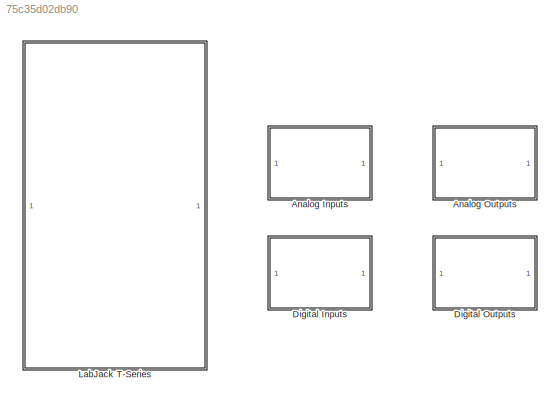
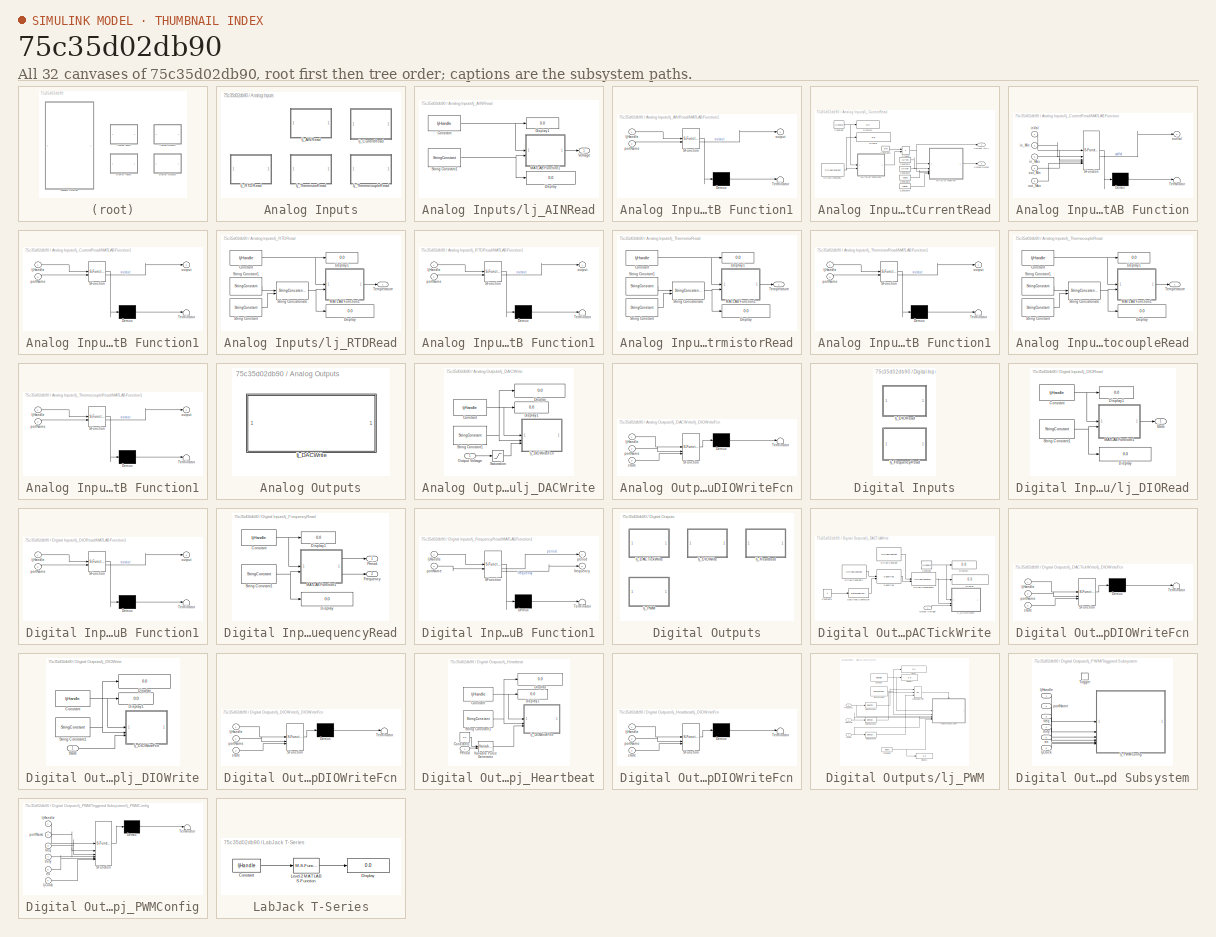
[diagram: thumbnail index - all 32 canvases of the model, root first then tree order]
MODEL slx_75c35d02db90
KIND library
CONFIG AbsTol = auto
CONFIG EnableMultiTasking = off
CONFIG FixedStep = auto
CONFIG MaxStep = auto
CONFIG MinStep = auto
CONFIG RelTol = 1e-3
CONFIG SampleTimeConstraint = Unconstrained
CONFIG SolverName = VariableStepAuto
CONFIG StartTime = 0.0
CONFIG StopTime = 10.0
BLOCK [SubSystem] Analog Inputs
BLOCK [SubSystem] Analog Inputs/lj_AINRead
BLOCK [Constant] Analog Inputs/lj_AINRead/Constant
  Value = ljHandle
BLOCK [Display] Analog Inputs/lj_AINRead/Display
  Decimation = 1
BLOCK [Display] Analog Inputs/lj_AINRead/Display1
  Decimation = 1
BLOCK [SubSystem] Analog Inputs/lj_AINRead/MATLAB Function1
  ErrorFcn = Stateflow.Translate.translate
  PermitHierarchicalResolution = ExplicitOnly
  SFBlockType = MATLAB Function
  TreatAsAtomicUnit = on
BLOCK [Demux] Analog Inputs/lj_AINRead/MATLAB Function1/ Demux 
  Outputs = 1
BLOCK [S-Function] Analog Inputs/lj_AINRead/MATLAB Function1/ SFunction 
  EnableBusSupport = off
  FunctionName = sf_sfun
  PortCounts = [2 2]
  SFcnIsStateOwnerBlock = off
  SFunctionDeploymentMode = off
  Tag = Stateflow S-Function 3
BLOCK [Terminator] Analog Inputs/lj_AINRead/MATLAB Function1/ Terminator 
BLOCK [Inport] Analog Inputs/lj_AINRead/MATLAB Function1/ljHandle
BLOCK [Outport] Analog Inputs/lj_AINRead/MATLAB Function1/output
BLOCK [Inport] Analog Inputs/lj_AINRead/MATLAB Function1/portName
  Port = 2
BLOCK [StringConstant] Analog Inputs/lj_AINRead/String Constant1
  String = ljPort
BLOCK [Outport] Analog Inputs/lj_AINRead/Voltage
BLOCK [SubSystem] Analog Inputs/lj_CurrentRead
BLOCK [Constant] Analog Inputs/lj_CurrentRead/Constant
  Value = ljHandle
BLOCK [Constant] Analog Inputs/lj_CurrentRead/Constant1
  Value = currentL
BLOCK [Constant] Analog Inputs/lj_CurrentRead/Constant2
  Value = currentH
BLOCK [Constant] Analog Inputs/lj_CurrentRead/Constant3
  Value = outputL
BLOCK [Constant] Analog Inputs/lj_CurrentRead/Constant4
  Value = outputH
BLOCK [Constant] Analog Inputs/lj_CurrentRead/Constant5
  Value = 8.475
BLOCK [Outport] Analog Inputs/lj_CurrentRead/Current (mA)
  Port = 2
BLOCK [Display] Analog Inputs/lj_CurrentRead/Display
  Decimation = 1
BLOCK [Display] Analog Inputs/lj_CurrentRead/Display1
  Decimation = 1
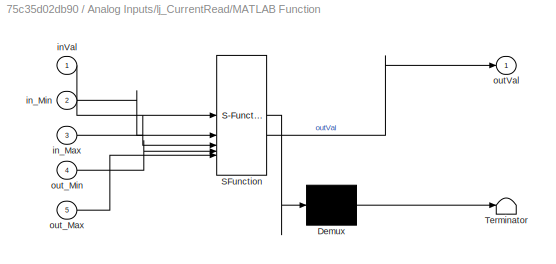
BLOCK [SubSystem] Analog Inputs/lj_CurrentRead/MATLAB Function
  ErrorFcn = Stateflow.Translate.translate
  PermitHierarchicalResolution = ExplicitOnly
  SFBlockType = MATLAB Function
  TreatAsAtomicUnit = on
BLOCK [Demux] Analog Inputs/lj_CurrentRead/MATLAB Function/ Demux 
  Outputs = 1
BLOCK [S-Function] Analog Inputs/lj_CurrentRead/MATLAB Function/ SFunction 
  EnableBusSupport = off
  FunctionName = sf_sfun
  PortCounts = [5 2]
  SFcnIsStateOwnerBlock = off
  SFunctionDeploymentMode = off
  Tag = Stateflow S-Function 10
BLOCK [Terminator] Analog Inputs/lj_CurrentRead/MATLAB Function/ Terminator 
BLOCK [Inport] Analog Inputs/lj_CurrentRead/MATLAB Function/inVal
BLOCK [Inport] Analog Inputs/lj_CurrentRead/MATLAB Function/in_Max
  Port = 3
BLOCK [Inport] Analog Inputs/lj_CurrentRead/MATLAB Function/in_Min
  Port = 2
BLOCK [Outport] Analog Inputs/lj_CurrentRead/MATLAB Function/outVal
BLOCK [Inport] Analog Inputs/lj_CurrentRead/MATLAB Function/out_Max
  Port = 5
BLOCK [Inport] Analog Inputs/lj_CurrentRead/MATLAB Function/out_Min
  Port = 4
BLOCK [SubSystem] Analog Inputs/lj_CurrentRead/MATLAB Function1
  ErrorFcn = Stateflow.Translate.translate
  PermitHierarchicalResolution = ExplicitOnly
  SFBlockType = MATLAB Function
  TreatAsAtomicUnit = on
BLOCK [Demux] Analog Inputs/lj_CurrentRead/MATLAB Function1/ Demux 
  Outputs = 1
BLOCK [S-Function] Analog Inputs/lj_CurrentRead/MATLAB Function1/ SFunction 
  EnableBusSupport = off
  FunctionName = sf_sfun
  PortCounts = [2 2]
  SFcnIsStateOwnerBlock = off
  SFunctionDeploymentMode = off
  Tag = Stateflow S-Function 9
BLOCK [Terminator] Analog Inputs/lj_CurrentRead/MATLAB Function1/ Terminator 
BLOCK [Inport] Analog Inputs/lj_CurrentRead/MATLAB Function1/ljHandle
BLOCK [Outport] Analog Inputs/lj_CurrentRead/MATLAB Function1/output
BLOCK [Inport] Analog Inputs/lj_CurrentRead/MATLAB Function1/portName
  Port = 2
BLOCK [Product] Analog Inputs/lj_CurrentRead/Product
BLOCK [Outport] Analog Inputs/lj_CurrentRead/Scaled Output
BLOCK [StringConstant] Analog Inputs/lj_CurrentRead/String Constant1
  String = ljPort
BLOCK [SubSystem] Analog Inputs/lj_RTDRead
BLOCK [Constant] Analog Inputs/lj_RTDRead/Constant
  Value = ljHandle
BLOCK [Display] Analog Inputs/lj_RTDRead/Display
  Decimation = 1
BLOCK [Display] Analog Inputs/lj_RTDRead/Display1
  Decimation = 1
BLOCK [SubSystem] Analog Inputs/lj_RTDRead/MATLAB Function1
  ErrorFcn = Stateflow.Translate.translate
  PermitHierarchicalResolution = ExplicitOnly
  SFBlockType = MATLAB Function
  TreatAsAtomicUnit = on
BLOCK [Demux] Analog Inputs/lj_RTDRead/MATLAB Function1/ Demux 
  Outputs = 1
BLOCK [S-Function] Analog Inputs/lj_RTDRead/MATLAB Function1/ SFunction 
  EnableBusSupport = off
  FunctionName = sf_sfun
  PortCounts = [2 2]
  SFcnIsStateOwnerBlock = off
  SFunctionDeploymentMode = off
  Tag = Stateflow S-Function 5
BLOCK [Terminator] Analog Inputs/lj_RTDRead/MATLAB Function1/ Terminator 
BLOCK [Inport] Analog Inputs/lj_RTDRead/MATLAB Function1/ljHandle
BLOCK [Outport] Analog Inputs/lj_RTDRead/MATLAB Function1/output
BLOCK [Inport] Analog Inputs/lj_RTDRead/MATLAB Function1/portName
  Port = 2
BLOCK [StringConcatenate] Analog Inputs/lj_RTDRead/String Concatenate
BLOCK [StringConstant] Analog Inputs/lj_RTDRead/String Constant
  String = '_EF_READ_A'
BLOCK [StringConstant] Analog Inputs/lj_RTDRead/String Constant1
  String = ljPort
BLOCK [Outport] Analog Inputs/lj_RTDRead/Temperature
BLOCK [SubSystem] Analog Inputs/lj_ThermistorRead
BLOCK [Constant] Analog Inputs/lj_ThermistorRead/Constant
  Value = ljHandle
BLOCK [Display] Analog Inputs/lj_ThermistorRead/Display
  Decimation = 1
BLOCK [Display] Analog Inputs/lj_ThermistorRead/Display1
  Decimation = 1
BLOCK [SubSystem] Analog Inputs/lj_ThermistorRead/MATLAB Function1
  ErrorFcn = Stateflow.Translate.translate
  PermitHierarchicalResolution = ExplicitOnly
  SFBlockType = MATLAB Function
  TreatAsAtomicUnit = on
BLOCK [Demux] Analog Inputs/lj_ThermistorRead/MATLAB Function1/ Demux 
  Outputs = 1
BLOCK [S-Function] Analog Inputs/lj_ThermistorRead/MATLAB Function1/ SFunction 
  EnableBusSupport = off
  FunctionName = sf_sfun
  PortCounts = [2 2]
  SFcnIsStateOwnerBlock = off
  SFunctionDeploymentMode = off
  Tag = Stateflow S-Function 2
BLOCK [Terminator] Analog Inputs/lj_ThermistorRead/MATLAB Function1/ Terminator 
BLOCK [Inport] Analog Inputs/lj_ThermistorRead/MATLAB Function1/ljHandle
BLOCK [Outport] Analog Inputs/lj_ThermistorRead/MATLAB Function1/output
BLOCK [Inport] Analog Inputs/lj_ThermistorRead/MATLAB Function1/portName
  Port = 2
BLOCK [StringConcatenate] Analog Inputs/lj_ThermistorRead/String Concatenate
BLOCK [StringConstant] Analog Inputs/lj_ThermistorRead/String Constant
  String = '_EF_READ_A'
BLOCK [StringConstant] Analog Inputs/lj_ThermistorRead/String Constant1
  String = ljPort
BLOCK [Outport] Analog Inputs/lj_ThermistorRead/Temperature
BLOCK [SubSystem] Analog Inputs/lj_ThermocoupleRead
BLOCK [Constant] Analog Inputs/lj_ThermocoupleRead/Constant
  Value = ljHandle
BLOCK [Display] Analog Inputs/lj_ThermocoupleRead/Display
  Decimation = 1
BLOCK [Display] Analog Inputs/lj_ThermocoupleRead/Display1
  Decimation = 1
BLOCK [SubSystem] Analog Inputs/lj_ThermocoupleRead/MATLAB Function1
  ErrorFcn = Stateflow.Translate.translate
  PermitHierarchicalResolution = ExplicitOnly
  SFBlockType = MATLAB Function
  TreatAsAtomicUnit = on
BLOCK [Demux] Analog Inputs/lj_ThermocoupleRead/MATLAB Function1/ Demux 
  Outputs = 1
BLOCK [S-Function] Analog Inputs/lj_ThermocoupleRead/MATLAB Function1/ SFunction 
  EnableBusSupport = off
  FunctionName = sf_sfun
  PortCounts = [2 2]
  SFcnIsStateOwnerBlock = off
  SFunctionDeploymentMode = off
  Tag = Stateflow S-Function 4
BLOCK [Terminator] Analog Inputs/lj_ThermocoupleRead/MATLAB Function1/ Terminator 
BLOCK [Inport] Analog Inputs/lj_ThermocoupleRead/MATLAB Function1/ljHandle
BLOCK [Outport] Analog Inputs/lj_ThermocoupleRead/MATLAB Function1/output
BLOCK [Inport] Analog Inputs/lj_ThermocoupleRead/MATLAB Function1/portName
  Port = 2
BLOCK [StringConcatenate] Analog Inputs/lj_ThermocoupleRead/String Concatenate
BLOCK [StringConstant] Analog Inputs/lj_ThermocoupleRead/String Constant
  String = '_EF_READ_A'
BLOCK [StringConstant] Analog Inputs/lj_ThermocoupleRead/String Constant1
  String = ljPort
BLOCK [Outport] Analog Inputs/lj_ThermocoupleRead/Temperature
BLOCK [SubSystem] Analog Outputs
BLOCK [SubSystem] Analog Outputs/lj_DACWrite
BLOCK [Constant] Analog Outputs/lj_DACWrite/Constant
  Value = ljHandle
BLOCK [Display] Analog Outputs/lj_DACWrite/Display
  Decimation = 1
BLOCK [Display] Analog Outputs/lj_DACWrite/Display1
  Decimation = 1
BLOCK [Inport] Analog Outputs/lj_DACWrite/Output Voltage
BLOCK [Saturate] Analog Outputs/lj_DACWrite/Saturation
  LowerLimit = 0
  UpperLimit = 5
BLOCK [StringConstant] Analog Outputs/lj_DACWrite/String Constant1
  String = ljPort
BLOCK [SubSystem] Analog Outputs/lj_DACWrite/lj_DIOWriteFcn
  ErrorFcn = Stateflow.Translate.translate
  PermitHierarchicalResolution = ExplicitOnly
  SFBlockType = MATLAB Function
  TreatAsAtomicUnit = on
BLOCK [Demux] Analog Outputs/lj_DACWrite/lj_DIOWriteFcn/ Demux 
  Outputs = 1
BLOCK [S-Function] Analog Outputs/lj_DACWrite/lj_DIOWriteFcn/ SFunction 
  EnableBusSupport = off
  FunctionName = sf_sfun
  PortCounts = [3 1]
  SFcnIsStateOwnerBlock = off
  SFunctionDeploymentMode = off
  Tag = Stateflow S-Function 11
BLOCK [Terminator] Analog Outputs/lj_DACWrite/lj_DIOWriteFcn/ Terminator 
BLOCK [Inport] Analog Outputs/lj_DACWrite/lj_DIOWriteFcn/ljHandle
BLOCK [Inport] Analog Outputs/lj_DACWrite/lj_DIOWriteFcn/portName
  Port = 2
BLOCK [Inport] Analog Outputs/lj_DACWrite/lj_DIOWriteFcn/state
  Port = 3
BLOCK [SubSystem] Digital Inputs
BLOCK [SubSystem] Digital Inputs/lj_DIORead
BLOCK [Constant] Digital Inputs/lj_DIORead/Constant
  Value = ljHandle
BLOCK [Display] Digital Inputs/lj_DIORead/Display
  Decimation = 1
BLOCK [Display] Digital Inputs/lj_DIORead/Display1
  Decimation = 1
BLOCK [SubSystem] Digital Inputs/lj_DIORead/MATLAB Function1
  ErrorFcn = Stateflow.Translate.translate
  PermitHierarchicalResolution = ExplicitOnly
  SFBlockType = MATLAB Function
  TreatAsAtomicUnit = on
BLOCK [Demux] Digital Inputs/lj_DIORead/MATLAB Function1/ Demux 
  Outputs = 1
BLOCK [S-Function] Digital Inputs/lj_DIORead/MATLAB Function1/ SFunction 
  EnableBusSupport = off
  FunctionName = sf_sfun
  PortCounts = [2 2]
  SFcnIsStateOwnerBlock = off
  SFunctionDeploymentMode = off
  Tag = Stateflow S-Function 6
BLOCK [Terminator] Digital Inputs/lj_DIORead/MATLAB Function1/ Terminator 
BLOCK [Inport] Digital Inputs/lj_DIORead/MATLAB Function1/ljHandle
BLOCK [Outport] Digital Inputs/lj_DIORead/MATLAB Function1/output
BLOCK [Inport] Digital Inputs/lj_DIORead/MATLAB Function1/portName
  Port = 2
BLOCK [Outport] Digital Inputs/lj_DIORead/State
BLOCK [StringConstant] Digital Inputs/lj_DIORead/String Constant1
  String = ljPort
BLOCK [SubSystem] Digital Inputs/lj_FrequencyRead
BLOCK [Constant] Digital Inputs/lj_FrequencyRead/Constant
  Value = ljHandle
BLOCK [Display] Digital Inputs/lj_FrequencyRead/Display
  Decimation = 1
BLOCK [Display] Digital Inputs/lj_FrequencyRead/Display1
  Decimation = 1
BLOCK [Outport] Digital Inputs/lj_FrequencyRead/Frequency
  Port = 2
BLOCK [SubSystem] Digital Inputs/lj_FrequencyRead/MATLAB Function1
  ErrorFcn = Stateflow.Translate.translate
  PermitHierarchicalResolution = ExplicitOnly
  SFBlockType = MATLAB Function
  TreatAsAtomicUnit = on
BLOCK [Demux] Digital Inputs/lj_FrequencyRead/MATLAB Function1/ Demux 
  Outputs = 1
BLOCK [S-Function] Digital Inputs/lj_FrequencyRead/MATLAB Function1/ SFunction 
  EnableBusSupport = off
  FunctionName = sf_sfun
  PortCounts = [2 3]
  SFcnIsStateOwnerBlock = off
  SFunctionDeploymentMode = off
  Tag = Stateflow S-Function 12
BLOCK [Terminator] Digital Inputs/lj_FrequencyRead/MATLAB Function1/ Terminator 
BLOCK [Outport] Digital Inputs/lj_FrequencyRead/MATLAB Function1/frequency
  Port = 2
BLOCK [Inport] Digital Inputs/lj_FrequencyRead/MATLAB Function1/ljHandle
BLOCK [Outport] Digital Inputs/lj_FrequencyRead/MATLAB Function1/period
BLOCK [Inport] Digital Inputs/lj_FrequencyRead/MATLAB Function1/portName
  Port = 2
BLOCK [Outport] Digital Inputs/lj_FrequencyRead/Period
BLOCK [StringConstant] Digital Inputs/lj_FrequencyRead/String Constant1
  String = ljPort
BLOCK [SubSystem] Digital Outputs
BLOCK [SubSystem] Digital Outputs/lj_DACTickWrite
BLOCK [Constant] Digital Outputs/lj_DACTickWrite/Constant
  Value = ljHandle
BLOCK [Constant] Digital Outputs/lj_DACTickWrite/Constant1
  Value = 4
BLOCK [DataTypeConversion] Digital Outputs/lj_DACTickWrite/Data Type Conversion
  OutDataTypeStr = int16
  RndMeth = Floor
  SaturateOnIntegerOverflow = off
BLOCK [Display] Digital Outputs/lj_DACTickWrite/Display
  Decimation = 1
BLOCK [Display] Digital Outputs/lj_DACTickWrite/Display1
  Decimation = 1
BLOCK [Inport] Digital Outputs/lj_DACTickWrite/Output Voltage
BLOCK [StringConcatenate] Digital Outputs/lj_DACTickWrite/String Concatenate
BLOCK [StringConstant] Digital Outputs/lj_DACTickWrite/String Constant
  String = 'TDAC'
BLOCK [StringConstant] Digital Outputs/lj_DACTickWrite/String Constant1
  String = ljPort
BLOCK [Substring] Digital Outputs/lj_DACTickWrite/Substring
  StringFromIdxToEnd = on
BLOCK [SubSystem] Digital Outputs/lj_DACTickWrite/lj_DIOWriteFcn
  ErrorFcn = Stateflow.Translate.translate
  PermitHierarchicalResolution = ExplicitOnly
  SFBlockType = MATLAB Function
  TreatAsAtomicUnit = on
BLOCK [Demux] Digital Outputs/lj_DACTickWrite/lj_DIOWriteFcn/ Demux 
  Outputs = 1
BLOCK [S-Function] Digital Outputs/lj_DACTickWrite/lj_DIOWriteFcn/ SFunction 
  EnableBusSupport = off
  FunctionName = sf_sfun
  PortCounts = [3 1]
  SFcnIsStateOwnerBlock = off
  SFunctionDeploymentMode = off
  Tag = Stateflow S-Function 8
BLOCK [Terminator] Digital Outputs/lj_DACTickWrite/lj_DIOWriteFcn/ Terminator 
BLOCK [Inport] Digital Outputs/lj_DACTickWrite/lj_DIOWriteFcn/ljHandle
BLOCK [Inport] Digital Outputs/lj_DACTickWrite/lj_DIOWriteFcn/portName
  Port = 2
BLOCK [Inport] Digital Outputs/lj_DACTickWrite/lj_DIOWriteFcn/state
  Port = 3
BLOCK [SubSystem] Digital Outputs/lj_DIOWrite
BLOCK [Constant] Digital Outputs/lj_DIOWrite/Constant
  Value = ljHandle
BLOCK [Display] Digital Outputs/lj_DIOWrite/Display
  Decimation = 1
BLOCK [Display] Digital Outputs/lj_DIOWrite/Display1
  Decimation = 1
BLOCK [Inport] Digital Outputs/lj_DIOWrite/State
BLOCK [StringConstant] Digital Outputs/lj_DIOWrite/String Constant1
  String = ljPort
BLOCK [SubSystem] Digital Outputs/lj_DIOWrite/lj_DIOWriteFcn
  ErrorFcn = Stateflow.Translate.translate
  PermitHierarchicalResolution = ExplicitOnly
  SFBlockType = MATLAB Function
  TreatAsAtomicUnit = on
BLOCK [Demux] Digital Outputs/lj_DIOWrite/lj_DIOWriteFcn/ Demux 
  Outputs = 1
BLOCK [S-Function] Digital Outputs/lj_DIOWrite/lj_DIOWriteFcn/ SFunction 
  EnableBusSupport = off
  FunctionName = sf_sfun
  PortCounts = [3 1]
  SFcnIsStateOwnerBlock = off
  SFunctionDeploymentMode = off
  Tag = Stateflow S-Function 7
BLOCK [Terminator] Digital Outputs/lj_DIOWrite/lj_DIOWriteFcn/ Terminator 
BLOCK [Inport] Digital Outputs/lj_DIOWrite/lj_DIOWriteFcn/ljHandle
BLOCK [Inport] Digital Outputs/lj_DIOWrite/lj_DIOWriteFcn/portName
  Port = 2
BLOCK [Inport] Digital Outputs/lj_DIOWrite/lj_DIOWriteFcn/state
  Port = 3
BLOCK [SubSystem] Digital Outputs/lj_Heartbeat
BLOCK [Constant] Digital Outputs/lj_Heartbeat/Constant
  Value = ljHandle
BLOCK [Constant] Digital Outputs/lj_Heartbeat/Constant1
  Value = 0.5
BLOCK [Display] Digital Outputs/lj_Heartbeat/Display
  Decimation = 1
BLOCK [Display] Digital Outputs/lj_Heartbeat/Display1
  Decimation = 1
BLOCK [Inport] Digital Outputs/lj_Heartbeat/Period
BLOCK [StringConstant] Digital Outputs/lj_Heartbeat/String Constant1
  String = ljPort
BLOCK [VariablePulseGenerator] Digital Outputs/lj_Heartbeat/Variable Pulse Generator
  RunAtFixedTimeIntervals = on
  SampleTime = Simulink_step
BLOCK [SubSystem] Digital Outputs/lj_Heartbeat/lj_DIOWriteFcn
  ErrorFcn = Stateflow.Translate.translate
  PermitHierarchicalResolution = ExplicitOnly
  SFBlockType = MATLAB Function
  TreatAsAtomicUnit = on
BLOCK [Demux] Digital Outputs/lj_Heartbeat/lj_DIOWriteFcn/ Demux 
  Outputs = 1
BLOCK [S-Function] Digital Outputs/lj_Heartbeat/lj_DIOWriteFcn/ SFunction 
  EnableBusSupport = off
  FunctionName = sf_sfun
  PortCounts = [3 1]
  SFcnIsStateOwnerBlock = off
  SFunctionDeploymentMode = off
  Tag = Stateflow S-Function 1
BLOCK [Terminator] Digital Outputs/lj_Heartbeat/lj_DIOWriteFcn/ Terminator 
BLOCK [Inport] Digital Outputs/lj_Heartbeat/lj_DIOWriteFcn/ljHandle
BLOCK [Inport] Digital Outputs/lj_Heartbeat/lj_DIOWriteFcn/portName
  Port = 2
BLOCK [Inport] Digital Outputs/lj_Heartbeat/lj_DIOWriteFcn/state
  Port = 3
BLOCK [SubSystem] Digital Outputs/lj_PWM
BLOCK [Constant] Digital Outputs/lj_PWM/Constant
  Value = ljHandle
BLOCK [Constant] Digital Outputs/lj_PWM/Constant1
  Value = ljClock
BLOCK [Reference] Digital Outputs/lj_PWM/Detect Change  REF=simulink/Logic and Bit
Operations/Detect
Change
  SourceBlock = simulink/Logic and Bit\nOperations/Detect\nChange
  SourceType = Detect Change
BLOCK [Reference] Digital Outputs/lj_PWM/Detect Change1  REF=simulink/Logic and Bit
Operations/Detect
Change
  SourceBlock = simulink/Logic and Bit\nOperations/Detect\nChange
  SourceType = Detect Change
BLOCK [Reference] Digital Outputs/lj_PWM/Detect Change2  REF=simulink/Logic and Bit
Operations/Detect
Change
  SourceBlock = simulink/Logic and Bit\nOperations/Detect\nChange
  SourceType = Detect Change
BLOCK [Display] Digital Outputs/lj_PWM/Display
  Decimation = 1
BLOCK [Display] Digital Outputs/lj_PWM/Display1
  Decimation = 1
BLOCK [Display] Digital Outputs/lj_PWM/Display2
  Decimation = 1
BLOCK [Inport] Digital Outputs/lj_PWM/Duty Cycle
  Port = 3
BLOCK [Inport] Digital Outputs/lj_PWM/Enable
BLOCK [Inport] Digital Outputs/lj_PWM/Frequency
  Port = 2
BLOCK [Logic] Digital Outputs/lj_PWM/Logical Operator
  AllPortsSameDT = off
  Inputs = 3
  Operator = OR
  OutDataTypeStr = boolean
BLOCK [StringConstant] Digital Outputs/lj_PWM/String Constant1
  String = ljPort
BLOCK [SubSystem] Digital Outputs/lj_PWM/Triggered Subsystem
  TreatAsAtomicUnit = on
BLOCK [TriggerPort] Digital Outputs/lj_PWM/Triggered Subsystem/Trigger
  InitialTriggerSignalState = zero
  StatesWhenEnabling = held
  VariantControl = (inherit)
BLOCK [Inport] Digital Outputs/lj_PWM/Triggered Subsystem/duty
  Port = 4
BLOCK [Inport] Digital Outputs/lj_PWM/Triggered Subsystem/en
  Port = 5
BLOCK [Inport] Digital Outputs/lj_PWM/Triggered Subsystem/freq
  Port = 3
BLOCK [Inport] Digital Outputs/lj_PWM/Triggered Subsystem/ljClock
  Port = 6
BLOCK [Inport] Digital Outputs/lj_PWM/Triggered Subsystem/ljHandle
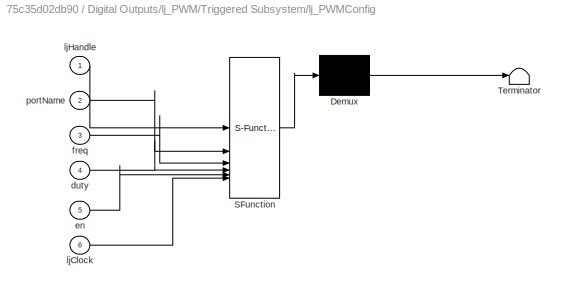
BLOCK [SubSystem] Digital Outputs/lj_PWM/Triggered Subsystem/lj_PWMConfig
  ErrorFcn = Stateflow.Translate.translate
  PermitHierarchicalResolution = ExplicitOnly
  SFBlockType = MATLAB Function
  TreatAsAtomicUnit = on
BLOCK [Demux] Digital Outputs/lj_PWM/Triggered Subsystem/lj_PWMConfig/ Demux 
  Outputs = 1
BLOCK [S-Function] Digital Outputs/lj_PWM/Triggered Subsystem/lj_PWMConfig/ SFunction 
  EnableBusSupport = off
  FunctionName = sf_sfun
  PortCounts = [6 1]
  SFcnIsStateOwnerBlock = off
  SFunctionDeploymentMode = off
  Tag = Stateflow S-Function 13
BLOCK [Terminator] Digital Outputs/lj_PWM/Triggered Subsystem/lj_PWMConfig/ Terminator 
BLOCK [Inport] Digital Outputs/lj_PWM/Triggered Subsystem/lj_PWMConfig/duty
  Port = 4
BLOCK [Inport] Digital Outputs/lj_PWM/Triggered Subsystem/lj_PWMConfig/en
  Port = 5
BLOCK [Inport] Digital Outputs/lj_PWM/Triggered Subsystem/lj_PWMConfig/freq
  Port = 3
BLOCK [Inport] Digital Outputs/lj_PWM/Triggered Subsystem/lj_PWMConfig/ljClock
  Port = 6
BLOCK [Inport] Digital Outputs/lj_PWM/Triggered Subsystem/lj_PWMConfig/ljHandle
BLOCK [Inport] Digital Outputs/lj_PWM/Triggered Subsystem/lj_PWMConfig/portName
  Port = 2
BLOCK [Inport] Digital Outputs/lj_PWM/Triggered Subsystem/portName
  Port = 2
BLOCK [SubSystem] LabJack T-Series
BLOCK [Constant] LabJack T-Series/Constant
  Value = ljHandle
BLOCK [Display] LabJack T-Series/Display
  Decimation = 1
BLOCK [M-S-Function] LabJack T-Series/Level-2 MATLAB S-Function
  FunctionName = close_lbj
NET Analog Inputs/lj_AINRead/Constant:1 -> Analog Inputs/lj_AINRead/Display1:1, Analog Inputs/lj_AINRead/MATLAB Function1:1
LINE Analog Inputs/lj_AINRead/MATLAB Function1:1 -> Analog Inputs/lj_AINRead/Voltage:1
NET Analog Inputs/lj_AINRead/String Constant1:1 -> Analog Inputs/lj_AINRead/Display:1, Analog Inputs/lj_AINRead/MATLAB Function1:2
LINE Analog Inputs/lj_CurrentRead/Constant1:1 -> Analog Inputs/lj_CurrentRead/MATLAB Function:2
LINE Analog Inputs/lj_CurrentRead/Constant2:1 -> Analog Inputs/lj_CurrentRead/MATLAB Function:3
LINE Analog Inputs/lj_CurrentRead/Constant3:1 -> Analog Inputs/lj_CurrentRead/MATLAB Function:4
LINE Analog Inputs/lj_CurrentRead/Constant4:1 -> Analog Inputs/lj_CurrentRead/MATLAB Function:5
LINE Analog Inputs/lj_CurrentRead/Constant5:1 -> Analog Inputs/lj_CurrentRead/Product:1
NET Analog Inputs/lj_CurrentRead/Constant:1 -> Analog Inputs/lj_CurrentRead/Display1:1, Analog Inputs/lj_CurrentRead/MATLAB Function1:1
LINE Analog Inputs/lj_CurrentRead/MATLAB Function1:1 -> Analog Inputs/lj_CurrentRead/Product:2
LINE Analog Inputs/lj_CurrentRead/MATLAB Function:1 -> Analog Inputs/lj_CurrentRead/Scaled Output:1
NET Analog Inputs/lj_CurrentRead/Product:1 -> Analog Inputs/lj_CurrentRead/Current (mA):1, Analog Inputs/lj_CurrentRead/MATLAB Function:1
NET Analog Inputs/lj_CurrentRead/String Constant1:1 -> Analog Inputs/lj_CurrentRead/Display:1, Analog Inputs/lj_CurrentRead/MATLAB Function1:2
NET Analog Inputs/lj_RTDRead/Constant:1 -> Analog Inputs/lj_RTDRead/Display1:1, Analog Inputs/lj_RTDRead/MATLAB Function1:1
LINE Analog Inputs/lj_RTDRead/MATLAB Function1:1 -> Analog Inputs/lj_RTDRead/Temperature:1
NET Analog Inputs/lj_RTDRead/String Concatenate:1 -> Analog Inputs/lj_RTDRead/Display:1, Analog Inputs/lj_RTDRead/MATLAB Function1:2
LINE Analog Inputs/lj_RTDRead/String Constant1:1 -> Analog Inputs/lj_RTDRead/String Concatenate:1
LINE Analog Inputs/lj_RTDRead/String Constant:1 -> Analog Inputs/lj_RTDRead/String Concatenate:2
NET Analog Inputs/lj_ThermistorRead/Constant:1 -> Analog Inputs/lj_ThermistorRead/Display1:1, Analog Inputs/lj_ThermistorRead/MATLAB Function1:1
LINE Analog Inputs/lj_ThermistorRead/MATLAB Function1:1 -> Analog Inputs/lj_ThermistorRead/Temperature:1
NET Analog Inputs/lj_ThermistorRead/String Concatenate:1 -> Analog Inputs/lj_ThermistorRead/Display:1, Analog Inputs/lj_ThermistorRead/MATLAB Function1:2
LINE Analog Inputs/lj_ThermistorRead/String Constant1:1 -> Analog Inputs/lj_ThermistorRead/String Concatenate:1
LINE Analog Inputs/lj_ThermistorRead/String Constant:1 -> Analog Inputs/lj_ThermistorRead/String Concatenate:2
NET Analog Inputs/lj_ThermocoupleRead/Constant:1 -> Analog Inputs/lj_ThermocoupleRead/Display1:1, Analog Inputs/lj_ThermocoupleRead/MATLAB Function1:1
LINE Analog Inputs/lj_ThermocoupleRead/MATLAB Function1:1 -> Analog Inputs/lj_ThermocoupleRead/Temperature:1
NET Analog Inputs/lj_ThermocoupleRead/String Concatenate:1 -> Analog Inputs/lj_ThermocoupleRead/Display:1, Analog Inputs/lj_ThermocoupleRead/MATLAB Function1:2
LINE Analog Inputs/lj_ThermocoupleRead/String Constant1:1 -> Analog Inputs/lj_ThermocoupleRead/String Concatenate:1
LINE Analog Inputs/lj_ThermocoupleRead/String Constant:1 -> Analog Inputs/lj_ThermocoupleRead/String Concatenate:2
NET Analog Outputs/lj_DACWrite/Constant:1 -> Analog Outputs/lj_DACWrite/Display1:1, Analog Outputs/lj_DACWrite/lj_DIOWriteFcn:1
LINE Analog Outputs/lj_DACWrite/Output Voltage:1 -> Analog Outputs/lj_DACWrite/Saturation:1
LINE Analog Outputs/lj_DACWrite/Saturation:1 -> Analog Outputs/lj_DACWrite/lj_DIOWriteFcn:3
NET Analog Outputs/lj_DACWrite/String Constant1:1 -> Analog Outputs/lj_DACWrite/Display:1, Analog Outputs/lj_DACWrite/lj_DIOWriteFcn:2
NET Digital Inputs/lj_DIORead/Constant:1 -> Digital Inputs/lj_DIORead/Display1:1, Digital Inputs/lj_DIORead/MATLAB Function1:1
LINE Digital Inputs/lj_DIORead/MATLAB Function1:1 -> Digital Inputs/lj_DIORead/State:1
NET Digital Inputs/lj_DIORead/String Constant1:1 -> Digital Inputs/lj_DIORead/Display:1, Digital Inputs/lj_DIORead/MATLAB Function1:2
NET Digital Inputs/lj_FrequencyRead/Constant:1 -> Digital Inputs/lj_FrequencyRead/Display1:1, Digital Inputs/lj_FrequencyRead/MATLAB Function1:1
LINE Digital Inputs/lj_FrequencyRead/MATLAB Function1:1 -> Digital Inputs/lj_FrequencyRead/Period:1
LINE Digital Inputs/lj_FrequencyRead/MATLAB Function1:2 -> Digital Inputs/lj_FrequencyRead/Frequency:1
NET Digital Inputs/lj_FrequencyRead/String Constant1:1 -> Digital Inputs/lj_FrequencyRead/Display:1, Digital Inputs/lj_FrequencyRead/MATLAB Function1:2
LINE Digital Outputs/lj_DACTickWrite/Constant1:1 -> Digital Outputs/lj_DACTickWrite/Data Type Conversion:1
NET Digital Outputs/lj_DACTickWrite/Constant:1 -> Digital Outputs/lj_DACTickWrite/Display1:1, Digital Outputs/lj_DACTickWrite/lj_DIOWriteFcn:1
LINE Digital Outputs/lj_DACTickWrite/Data Type Conversion:1 -> Digital Outputs/lj_DACTickWrite/Substring:2
LINE Digital Outputs/lj_DACTickWrite/Output Voltage:1 -> Digital Outputs/lj_DACTickWrite/lj_DIOWriteFcn:3
NET Digital Outputs/lj_DACTickWrite/String Concatenate:1 -> Digital Outputs/lj_DACTickWrite/Display:1, Digital Outputs/lj_DACTickWrite/lj_DIOWriteFcn:2
LINE Digital Outputs/lj_DACTickWrite/String Constant1:1 -> Digital Outputs/lj_DACTickWrite/Substring:1
LINE Digital Outputs/lj_DACTickWrite/String Constant:1 -> Digital Outputs/lj_DACTickWrite/String Concatenate:1
LINE Digital Outputs/lj_DACTickWrite/Substring:1 -> Digital Outputs/lj_DACTickWrite/String Concatenate:2
NET Digital Outputs/lj_DIOWrite/Constant:1 -> Digital Outputs/lj_DIOWrite/Display1:1, Digital Outputs/lj_DIOWrite/lj_DIOWriteFcn:1
LINE Digital Outputs/lj_DIOWrite/State:1 -> Digital Outputs/lj_DIOWrite/lj_DIOWriteFcn:3
NET Digital Outputs/lj_DIOWrite/String Constant1:1 -> Digital Outputs/lj_DIOWrite/Display:1, Digital Outputs/lj_DIOWrite/lj_DIOWriteFcn:2
LINE Digital Outputs/lj_Heartbeat/Constant1:1 -> Digital Outputs/lj_Heartbeat/Variable Pulse Generator:1
NET Digital Outputs/lj_Heartbeat/Constant:1 -> Digital Outputs/lj_Heartbeat/Display1:1, Digital Outputs/lj_Heartbeat/lj_DIOWriteFcn:1
LINE Digital Outputs/lj_Heartbeat/Period:1 -> Digital Outputs/lj_Heartbeat/Variable Pulse Generator:2
NET Digital Outputs/lj_Heartbeat/String Constant1:1 -> Digital Outputs/lj_Heartbeat/Display:1, Digital Outputs/lj_Heartbeat/lj_DIOWriteFcn:2
LINE Digital Outputs/lj_Heartbeat/Variable Pulse Generator:1 -> Digital Outputs/lj_Heartbeat/lj_DIOWriteFcn:3
NET Digital Outputs/lj_PWM/Constant1:1 -> Digital Outputs/lj_PWM/Display2:1, Digital Outputs/lj_PWM/Triggered Subsystem:6
NET Digital Outputs/lj_PWM/Constant:1 -> Digital Outputs/lj_PWM/Display1:1, Digital Outputs/lj_PWM/Triggered Subsystem:1
LINE Digital Outputs/lj_PWM/Detect Change1:1 -> Digital Outputs/lj_PWM/Logical Operator:1
LINE Digital Outputs/lj_PWM/Detect Change2:1 -> Digital Outputs/lj_PWM/Logical Operator:2
LINE Digital Outputs/lj_PWM/Detect Change:1 -> Digital Outputs/lj_PWM/Logical Operator:3
NET Digital Outputs/lj_PWM/Duty Cycle:1 -> Digital Outputs/lj_PWM/Detect Change2:1, Digital Outputs/lj_PWM/Triggered Subsystem:4
NET Digital Outputs/lj_PWM/Enable:1 -> Digital Outputs/lj_PWM/Detect Change:1, Digital Outputs/lj_PWM/Triggered Subsystem:5
NET Digital Outputs/lj_PWM/Frequency:1 -> Digital Outputs/lj_PWM/Detect Change1:1, Digital Outputs/lj_PWM/Triggered Subsystem:3
LINE Digital Outputs/lj_PWM/Logical Operator:1 -> Digital Outputs/lj_PWM/Triggered Subsystem:trigger
NET Digital Outputs/lj_PWM/String Constant1:1 -> Digital Outputs/lj_PWM/Display:1, Digital Outputs/lj_PWM/Triggered Subsystem:2
LINE Digital Outputs/lj_PWM/Triggered Subsystem/duty:1 -> Digital Outputs/lj_PWM/Triggered Subsystem/lj_PWMConfig:4
LINE Digital Outputs/lj_PWM/Triggered Subsystem/en:1 -> Digital Outputs/lj_PWM/Triggered Subsystem/lj_PWMConfig:5
LINE Digital Outputs/lj_PWM/Triggered Subsystem/freq:1 -> Digital Outputs/lj_PWM/Triggered Subsystem/lj_PWMConfig:3
LINE Digital Outputs/lj_PWM/Triggered Subsystem/ljClock:1 -> Digital Outputs/lj_PWM/Triggered Subsystem/lj_PWMConfig:6
LINE Digital Outputs/lj_PWM/Triggered Subsystem/ljHandle:1 -> Digital Outputs/lj_PWM/Triggered Subsystem/lj_PWMConfig:1
LINE Digital Outputs/lj_PWM/Triggered Subsystem/portName:1 -> Digital Outputs/lj_PWM/Triggered Subsystem/lj_PWMConfig:2
LINE LabJack T-Series/Constant:1 -> LabJack T-Series/Level-2 MATLAB S-Function:1
LINE LabJack T-Series/Level-2 MATLAB S-Function:1 -> LabJack T-Series/Display:1
note: NET lines group one-source signal fan-out (src -> all destinations, sorted); 1:1 wires keep LINE
CHART Digital Inputs/lj_FrequencyRead/MATLAB Function1 states=1 transitions=1
  STATE_LABEL 'eML_blk_kernel()'
  STATE_LABEL 'SCRIPT:\nfunction [period, frequency]  = fcn(ljHandle, portName)\ncoder.extrinsic(\'slx_eReadName\')\nperiod = [0];\nfrequency = [0];\nportName_per = portName + "_EF_READ_A_F"\nportName_freq = portName + "_EF_READ_B_F"\nportName_reset = portName + "_EF_READ_A_F_AND_RESET"\n%[~, period] = slx_eReadName(ljHandle, portName_per)\n%[~, frequency] = slx_eReadName(ljHandle, portName_freq)\n[~, period] = slx_eReadNam...<+50ch>'
CHART Digital Outputs/lj_PWM/Triggered
Subsystem/lj_PWMConfig states=1 transitions=1
  STATE_LABEL 'eML_blk_kernel()'
  STATE_LABEL 'SCRIPT:\nfunction fcn(ljHandle,portName, freq, duty, en, ljClock)\ncoder.extrinsic(\'slx_eWriteName\');\ncoder.extrinsic(\'slx_eReadName\');\n\n%set up addresses for configuring port\nljClock_str = string(ljClock);\naddr1 = portName + "_EF_ENABLE";\naddr2 = "DIO_EF_CLOCK" + ljClock_str + "_ENABLE";\naddr3 = "DIO_EF_CLOCK" + ljClock_str + "_ROLL_VALUE";\naddr4 = portName + "_EF_INDEX";\naddr5 = portName + "_EF_CO...<+749ch>'
CHART Digital Outputs/lj_Heartbeat/lj_DIOWriteFcn states=1 transitions=1
  STATE_LABEL 'eML_blk_kernel()'
  STATE_LABEL "SCRIPT:\nfunction fcn(ljHandle,portName, state)\ncoder.extrinsic('slx_eWriteName')\nslx_eWriteName(ljHandle, portName, state);\n"
CHART Analog Inputs/lj_ThermistorRead/MATLAB Function1 states=1 transitions=1
  STATE_LABEL 'eML_blk_kernel()'
  STATE_LABEL "SCRIPT:\nfunction output  = fcn(ljHandle, portName)\ncoder.extrinsic('slx_eReadName')\noutput = [0];\n[~, output] = slx_eReadName(ljHandle, portName);\n"
CHART Analog Inputs/lj_AINRead/MATLAB Function1 states=1 transitions=1
  STATE_LABEL 'eML_blk_kernel()'
  STATE_LABEL "SCRIPT:\nfunction output  = fcn(ljHandle, portName)\ncoder.extrinsic('slx_eReadName')\noutput = [0];\n[~, output] = slx_eReadName(ljHandle, portName);\n"
CHART Analog Inputs/lj_ThermocoupleRead/MATLAB Function1 states=1 transitions=1
  STATE_LABEL 'eML_blk_kernel()'
  STATE_LABEL "SCRIPT:\nfunction output  = fcn(ljHandle, portName)\ncoder.extrinsic('slx_eReadName')\noutput = [0];\n[~, output] = slx_eReadName(ljHandle, portName);\n"
CHART Analog Inputs/lj_RTDRead/MATLAB Function1 states=1 transitions=1
  STATE_LABEL 'eML_blk_kernel()'
  STATE_LABEL "SCRIPT:\nfunction output  = fcn(ljHandle, portName)\ncoder.extrinsic('slx_eReadName')\noutput = [0];\n[~, output] = slx_eReadName(ljHandle, portName);\n"
CHART Digital Inputs/lj_DIORead/MATLAB Function1 states=1 transitions=1
  STATE_LABEL 'eML_blk_kernel()'
  STATE_LABEL "SCRIPT:\nfunction output  = fcn(ljHandle, portName)\ncoder.extrinsic('slx_eReadName')\noutput = [0];\n[~, output] = slx_eReadName(ljHandle, portName);\n"
CHART Digital Outputs/lj_DIOWrite/lj_DIOWriteFcn states=1 transitions=1
  STATE_LABEL 'eML_blk_kernel()'
  STATE_LABEL "SCRIPT:\nfunction fcn(ljHandle,portName, state)\ncoder.extrinsic('slx_eWriteName')\nslx_eWriteName(ljHandle, portName, state);\n"
CHART Digital Outputs/lj_DACTickWrite/lj_DIOWriteFcn states=1 transitions=1
  STATE_LABEL 'eML_blk_kernel()'
  STATE_LABEL "SCRIPT:\nfunction fcn(ljHandle,portName, state)\ncoder.extrinsic('slx_eWriteName')\nslx_eWriteName(ljHandle, portName, state);\n"
CHART Analog Inputs/lj_CurrentRead/MATLAB Function1 states=1 transitions=1
  STATE_LABEL 'eML_blk_kernel()'
  STATE_LABEL "SCRIPT:\nfunction output  = fcn(ljHandle, portName)\ncoder.extrinsic('slx_eReadName')\noutput = [0];\n[~, output] = slx_eReadName(ljHandle, portName);\n"
CHART Analog Inputs/lj_CurrentRead/MATLAB Function states=1 transitions=1
  STATE_LABEL 'eML_blk_kernel()'
  STATE_LABEL 'SCRIPT:\nfunction outVal  = maprange(inVal,in_Min,in_Max,out_Min,out_Max)\n%MAPRANGE Matlab implementation of simple Arduino maprange function\n%   Source: https://www.arduino.cc/reference/en/language/functions/math/map/\noutVal = (inVal - in_Min) * (out_Max - out_Min)/(in_Max - in_Min) + out_Min;\nend\n'
CHART Analog Outputs/lj_DACWrite/lj_DIOWriteFcn states=1 transitions=1
  STATE_LABEL 'eML_blk_kernel()'
  STATE_LABEL "SCRIPT:\nfunction fcn(ljHandle,portName, state)\ncoder.extrinsic('slx_eWriteName')\nslx_eWriteName(ljHandle, portName, state);\n"
CHART  states=0 transitions=0
CHART  states=0 transitions=0
CHART  states=0 transitions=0
CHART  states=0 transitions=0
CHART  states=0 transitions=0
CHART  states=0 transitions=0
CHART  states=0 transitions=0
CHART  states=0 transitions=0
CHART  states=0 transitions=0
CHART  states=0 transitions=0
CHART  states=0 transitions=0
CHART  states=0 transitions=0
CHART  states=0 transitions=0
